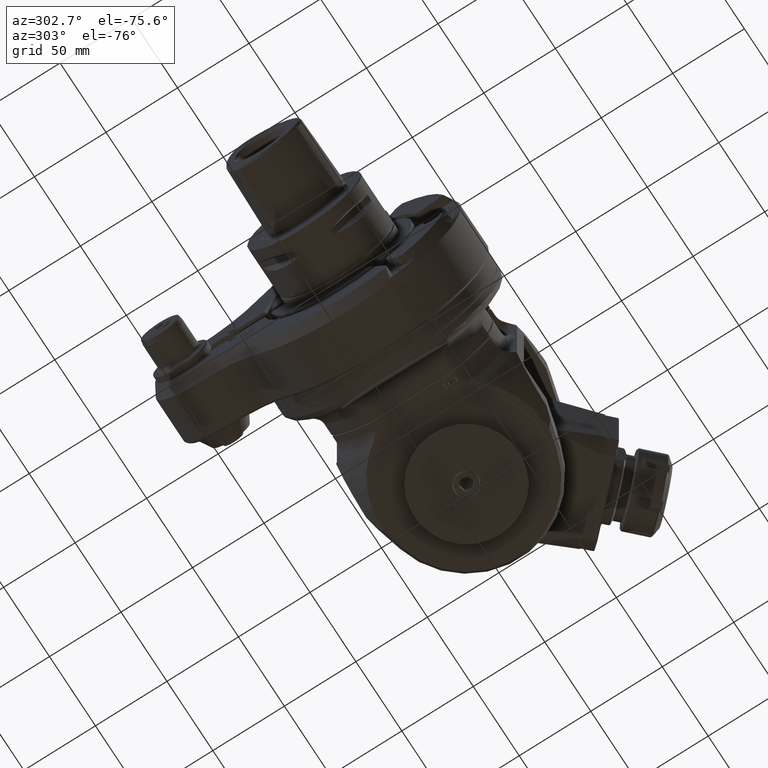
[diagram: clean part render]
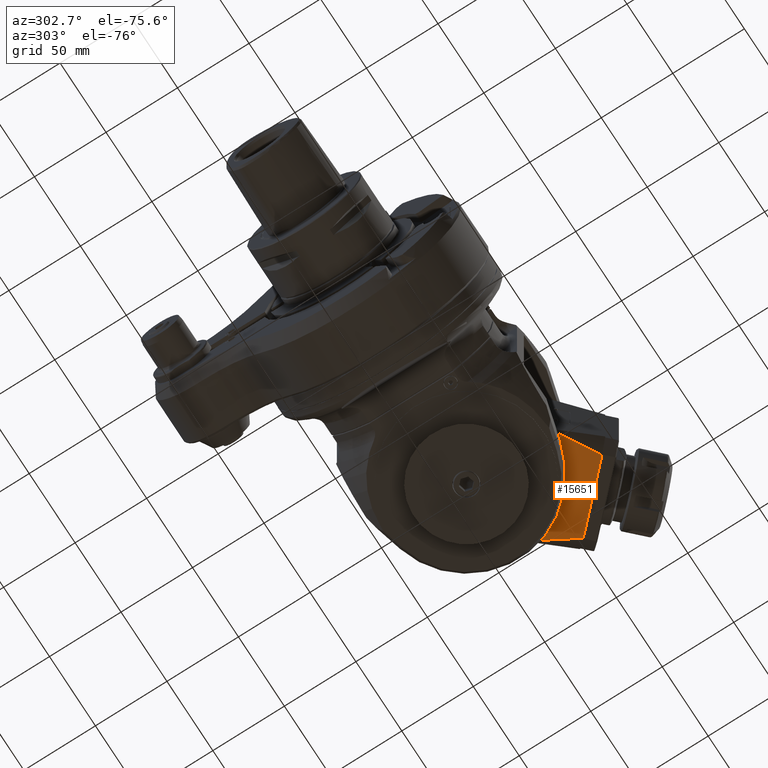
[diagram: same view with one face highlighted and labeled with its STEP entity id]
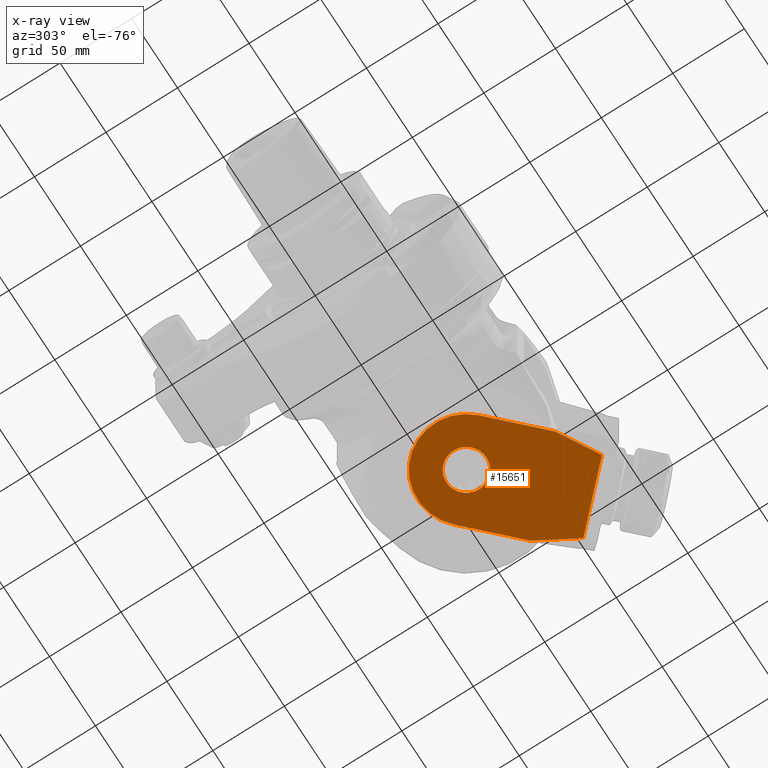
[diagram: x-ray of the same camera — body ghosted, the highlighted face saturated]
A machine part, auxiliary view. The second image highlights one B-rep face of the part: STEP entity #15651.
The next image is the same camera in x-ray: the body ghosted, the highlighted face saturated — about 0% of this face is hidden behind the body in this view.
In plain terms, the highlighted planar face has unit normal (-0, 0, -1).
Its self-contained STEP definition (entity closure, byte-faithful):
#230=(
BOUNDED_CURVE()
B_SPLINE_CURVE(2,(#44594,#44595,#44596),.UNSPECIFIED.,.F.,.F.)
B_SPLINE_CURVE_WITH_KNOTS((3,3),(7.42656127489342,11.3701992043667),
 .UNSPECIFIED.)
CURVE()
GEOMETRIC_REPRESENTATION_ITEM()
RATIONAL_B_SPLINE_CURVE((1.01543049772272,1.01209706303294,1.0008723064906))
REPRESENTATION_ITEM('')
);
#231=(
BOUNDED_CURVE()
B_SPLINE_CURVE(2,(#44599,#44600,#44601),.UNSPECIFIED.,.F.,.F.)
B_SPLINE_CURVE_WITH_KNOTS((3,3),(0.151197755298252,4.09483568477151),
 .UNSPECIFIED.)
CURVE()
GEOMETRIC_REPRESENTATION_ITEM()
RATIONAL_B_SPLINE_CURVE((1.0008723064906,1.01209706303294,1.01543049772272))
REPRESENTATION_ITEM('')
);
#640=FACE_BOUND('',#3048,.T.);
#1237=PLANE('',#17231);
#2048=FACE_OUTER_BOUND('',#3047,.T.);
#3047=EDGE_LOOP('',(#13511,#13512,#13513,#13514,#13515,#13516));
#3048=EDGE_LOOP('',(#13517));
#4106=LINE('',#44588,#5149);
#4107=LINE('',#44592,#5150);
#4108=LINE('',#44598,#5151);
#5149=VECTOR('',#20939,45.96777232448);
#5150=VECTOR('',#20944,45.96777232437);
#5151=VECTOR('',#20945,51.66236541237);
#6049=CIRCLE('',#17228,33.99999988061);
#6050=CIRCLE('',#17232,14.);
#7340=VERTEX_POINT('',#44581);
#7341=VERTEX_POINT('',#44583);
#7342=VERTEX_POINT('',#44587);
#7343=VERTEX_POINT('',#44591);
#7344=VERTEX_POINT('',#44593);
#7345=VERTEX_POINT('',#44597);
#7346=VERTEX_POINT('',#44602);
#9468=EDGE_CURVE('',#7341,#7340,#6049,.T.);
#9470=EDGE_CURVE('',#7342,#7341,#4106,.T.);
#9472=EDGE_CURVE('',#7343,#7340,#4107,.T.);
#9473=EDGE_CURVE('',#7343,#7344,#230,.T.);
#9474=EDGE_CURVE('',#7345,#7344,#4108,.T.);
#9475=EDGE_CURVE('',#7345,#7342,#231,.T.);
#9476=EDGE_CURVE('',#7346,#7346,#6050,.T.);
#13511=ORIENTED_EDGE('',*,*,#9472,.F.);
#13512=ORIENTED_EDGE('',*,*,#9473,.T.);
#13513=ORIENTED_EDGE('',*,*,#9474,.F.);
#13514=ORIENTED_EDGE('',*,*,#9475,.T.);
#13515=ORIENTED_EDGE('',*,*,#9470,.T.);
#13516=ORIENTED_EDGE('',*,*,#9468,.T.);
#13517=ORIENTED_EDGE('',*,*,#9476,.T.);
#15651=ADVANCED_FACE('',(#2048,#640),#1237,.T.);
#17228=AXIS2_PLACEMENT_3D('',#44584,#20934,#20935);
#17231=AXIS2_PLACEMENT_3D('',#44590,#20942,#20943);
#17232=AXIS2_PLACEMENT_3D('',#44603,#20946,#20947);
#20934=DIRECTION('center_axis',(0.,-1.,0.));
#20935=DIRECTION('ref_axis',(0.70710678907861,0.,-0.707106773294486));
#20939=DIRECTION('',(-0.70710677603942,2.534489802752E-10,-0.707106786333676));
#20942=DIRECTION('center_axis',(0.,-1.,0.));
#20943=DIRECTION('ref_axis',(0.707106781186548,0.,0.707106781186548));
#20944=DIRECTION('',(-0.707106786370178,2.018295755412E-10,-0.707106776002917));
#20945=DIRECTION('',(0.707106781186548,0.,-0.707106781186548));
#20946=DIRECTION('center_axis',(0.,1.,0.));
#20947=DIRECTION('ref_axis',(0.707106781186548,0.,0.707106781186548));
#44581=CARTESIAN_POINT('',(84.0416304993391,-34.9999999996583,-24.0416305308946));
#44583=CARTESIAN_POINT('',(35.9583694681692,-34.9999999984766,24.0416305000861));
#44584=CARTESIAN_POINT('Origin',(59.9999997432855,-35.,-2.56714471902342E-7));
#44587=CARTESIAN_POINT('',(68.4624926691873,-34.9999999690549,56.5457544133066));
#44588=CARTESIAN_POINT('',(68.4624927258749,-34.9999999895,56.5457542990943));
#44590=CARTESIAN_POINT('Origin',(22.6034766891278,-35.,-33.1457966165259));
#44591=CARTESIAN_POINT('',(116.545754413307,-34.9999999690548,8.46249266918726));
#44592=CARTESIAN_POINT('',(116.545754299094,-34.9999999895,8.46249272587485));
#44593=CARTESIAN_POINT('',(132.00551982779,-35.,35.4747109125732));
#44594=CARTESIAN_POINT('Ctrl Pts',(116.545754556684,-35.,8.46249257235512));
#44595=CARTESIAN_POINT('Ctrl Pts',(125.5596172718,-35.,23.5839952080187));
#44596=CARTESIAN_POINT('Ctrl Pts',(132.005519827794,-35.,35.4747109125711));
#44597=CARTESIAN_POINT('',(95.4747109125732,-35.,72.0055198277903));
#44598=CARTESIAN_POINT('',(95.4747109125732,-35.,72.0055198277903));
#44599=CARTESIAN_POINT('Ctrl Pts',(95.474710912571,-35.,72.0055198277944));
#44600=CARTESIAN_POINT('Ctrl Pts',(83.5839952080188,-35.,65.5596172718004));
#44601=CARTESIAN_POINT('Ctrl Pts',(68.4624925723551,-35.,56.5457545566838));
#44602=CARTESIAN_POINT('',(69.8994949366159,-35.,9.89949493661579));
#44603=CARTESIAN_POINT('Origin',(60.0000000000042,-35.,4.12114786740858E-12));